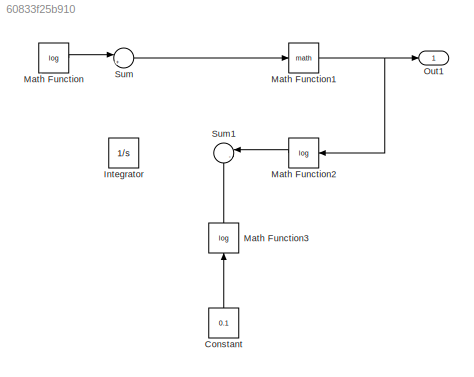
MODEL slx_60833f25b910
KIND model
CONFIG AbsTol = auto
CONFIG EnableMultiTasking = off
CONFIG FixedStep = auto
CONFIG MaxStep = 0.2
CONFIG MinStep = auto
CONFIG RelTol = 1e-3
CONFIG SampleTimeConstraint = Unconstrained
CONFIG Solver = VariableStepAuto
CONFIG SolverName = VariableStepAuto
CONFIG StartTime = 0.0
CONFIG StopTime = 20
BLOCK [Constant] Constant
  Value = 0.1
BLOCK [Integrator] Integrator
  Ports = [1, 1]
BLOCK [Math] Math Function
  Operator = log
  Ports = [1, 1]
BLOCK [Math] Math Function1
  Ports = [1, 1]
BLOCK [Math] Math Function2
  Operator = log
  Ports = [1, 1]
BLOCK [Math] Math Function3
  Operator = log
  Ports = [1, 1]
BLOCK [Outport] Out1
  IconDisplay = Port number
BLOCK [Sum] Sum
  IconShape = round
  InputSameDT = off
  Inputs = |++
  OutDataTypeStr = Inherit: Inherit via internal rule
  Ports = [2, 1]
  SaturateOnIntegerOverflow = off
BLOCK [Sum] Sum1
  IconShape = round
  InputSameDT = off
  Inputs = |-+
  OutDataTypeStr = Inherit: Inherit via internal rule
  Ports = [2, 1]
  SaturateOnIntegerOverflow = off
LINE Constant:1 -> Math Function3:1
NET Math Function1:1 -> Math Function2:1, Out1:1
LINE Math Function2:1 -> Sum1:1
LINE Math Function3:1 -> Sum1:2
LINE Math Function:1 -> Sum:1
LINE Sum:1 -> Math Function1:1
note: NET lines group one-source signal fan-out (src -> all destinations, sorted); 1:1 wires keep LINE
